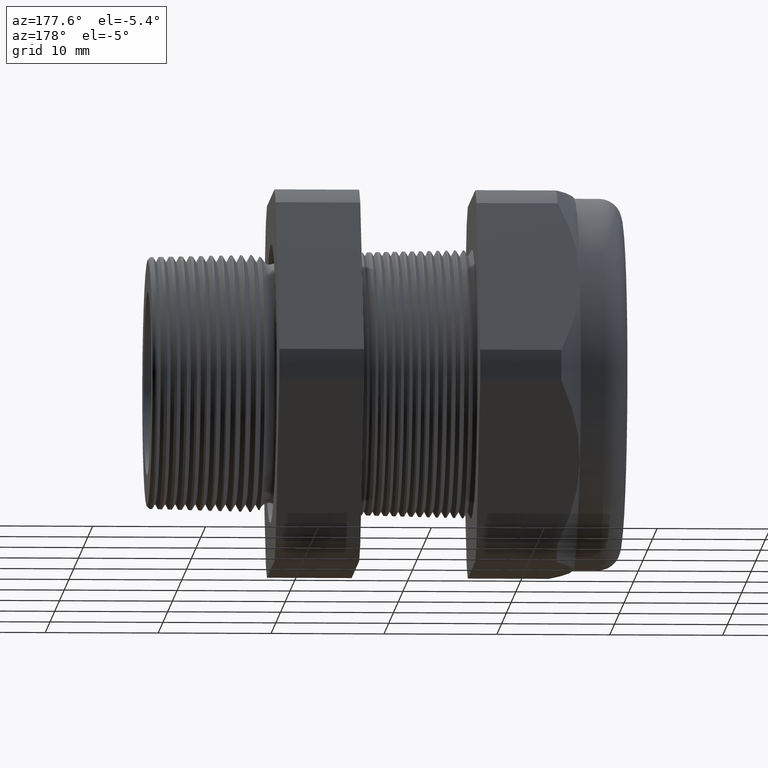
[diagram: clean part render]
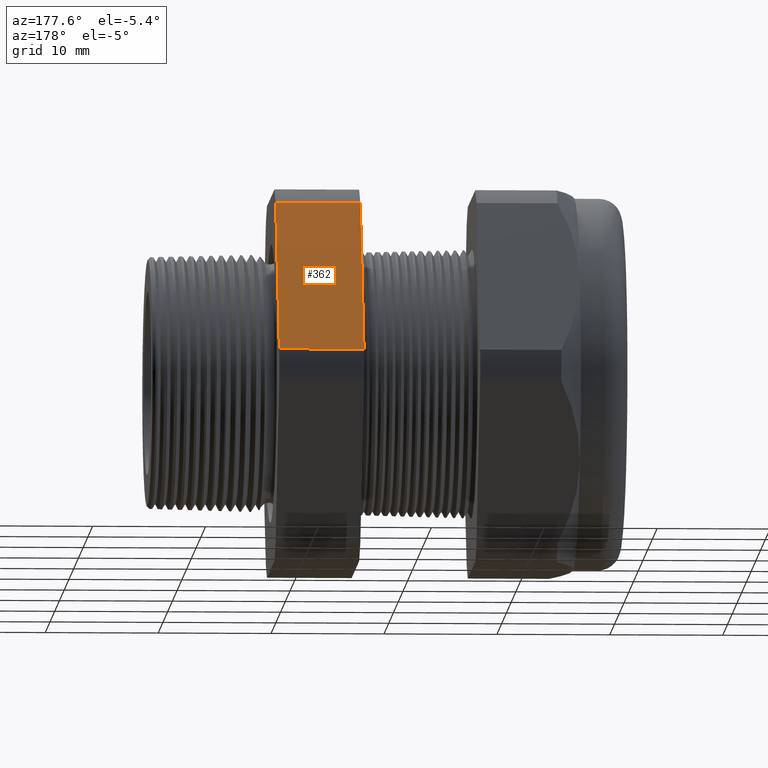
[diagram: same view with one face highlighted and labeled with its STEP entity id]
A machine part, auxiliary view. The second image highlights one B-rep face of the part: STEP entity #362.
In plain terms, the highlighted planar face has unit normal (0, 0.866, 0.5).
Its self-contained STEP definition (entity closure, byte-faithful):
#196 = VERTEX_POINT ( 'NONE', #2972 ) ;
#198 = EDGE_CURVE ( 'NONE', #196, #199, #2971, .T. ) ;
#199 = VERTEX_POINT ( 'NONE', #2967 ) ;
#339 = EDGE_CURVE ( 'NONE', #340, #341, #3212, .T. ) ;
#340 = VERTEX_POINT ( 'NONE', #3277 ) ;
#341 = VERTEX_POINT ( 'NONE', #3276 ) ;
#360 = EDGE_CURVE ( 'NONE', #196, #341, #3311, .T. ) ;
#362 = ADVANCED_FACE ( 'NONE', ( #3307 ), #3306, .T. ) ;
#363 = EDGE_LOOP ( 'NONE', ( #364, #365, #1024, #1025 ) ) ;
#364 = ORIENTED_EDGE ( 'NONE', *, *, #360, .T. ) ;
#365 = ORIENTED_EDGE ( 'NONE', *, *, #339, .F. ) ;
#1024 = ORIENTED_EDGE ( 'NONE', *, *, #1026, .F. ) ;
#1025 = ORIENTED_EDGE ( 'NONE', *, *, #198, .F. ) ;
#1026 = EDGE_CURVE ( 'NONE', #199, #340, #4483, .T. ) ;
#2967 = CARTESIAN_POINT ( 'NONE',  ( -0.3100000000000000000, 0.4063420493440890700, 0.5961949252843787800 ) ) ;
#2968 = DIRECTION ( 'NONE',  ( 0.0000000000000000000, -0.4999999999999998900, 0.8660254037844386000 ) ) ;
#2969 = VECTOR ( 'NONE', #2968, 39.37007874015748100 ) ;
#2970 = CARTESIAN_POINT ( 'NONE',  ( -0.3100000000000000000, 0.8879165124598854500, -0.2379165124598849300 ) ) ;
#2971 = LINE ( 'NONE', #2970, #2969 ) ;
#2972 = CARTESIAN_POINT ( 'NONE',  ( -0.3100000000000000000, 0.7194909755756817600, 0.05380507471562173000 ) ) ;
#3211 = CARTESIAN_POINT ( 'NONE',  ( -0.6052755905511809600, 0.8879165124598854500, -0.2379165124598849300 ) ) ;
#3212 = LINE ( 'NONE', #3211, #3279 ) ;
#3276 = CARTESIAN_POINT ( 'NONE',  ( -0.6052755905511810800, 0.7194909755756817600, 0.05380507471562173000 ) ) ;
#3277 = CARTESIAN_POINT ( 'NONE',  ( -0.6052755905511810800, 0.4063420493440890700, 0.5961949252843787800 ) ) ;
#3278 = DIRECTION ( 'NONE',  ( 0.0000000000000000000, 0.4999999999999998900, -0.8660254037844386000 ) ) ;
#3279 = VECTOR ( 'NONE', #3278, 39.37007874015748100 ) ;
#3302 = DIRECTION ( 'NONE',  ( 0.0000000000000000000, -0.4999999999999998900, 0.8660254037844386000 ) ) ;
#3303 = DIRECTION ( 'NONE',  ( 0.0000000000000000000, 0.8660254037844387100, 0.4999999999999999400 ) ) ;
#3304 = CARTESIAN_POINT ( 'NONE',  ( 0.1200000000000000900, 0.4063420493440890700, 0.5961949252843786700 ) ) ;
#3305 = AXIS2_PLACEMENT_3D ( 'NONE', #3304, #3303, #3302 ) ;
#3306 = PLANE ( 'NONE',  #3305 ) ;
#3307 = FACE_OUTER_BOUND ( 'NONE', #363, .T. ) ;
#3308 = DIRECTION ( 'NONE',  ( -1.000000000000000000, 0.0000000000000000000, 0.0000000000000000000 ) ) ;
#3309 = VECTOR ( 'NONE', #3308, 39.37007874015748100 ) ;
#3310 = CARTESIAN_POINT ( 'NONE',  ( 0.1200000000000000900, 0.7194909755756817600, 0.05380507471562173000 ) ) ;
#3311 = LINE ( 'NONE', #3310, #3309 ) ;
#4482 = CARTESIAN_POINT ( 'NONE',  ( 0.1200000000000000900, 0.4063420493440890700, 0.5961949252843787800 ) ) ;
#4483 = LINE ( 'NONE', #4482, #4546 ) ;
#4545 = DIRECTION ( 'NONE',  ( -1.000000000000000000, 0.0000000000000000000, 0.0000000000000000000 ) ) ;
#4546 = VECTOR ( 'NONE', #4545, 39.37007874015748100 ) ;